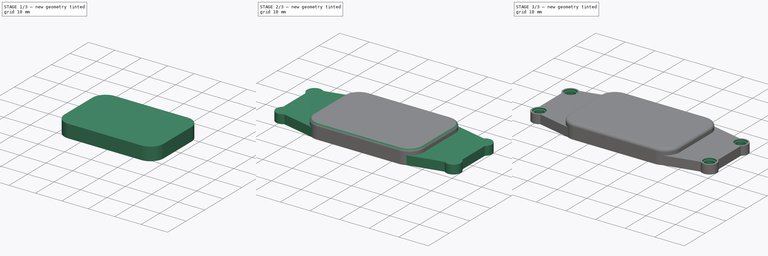
[diagram: build sequence overview — one tinted view per stage of 3, left to right]
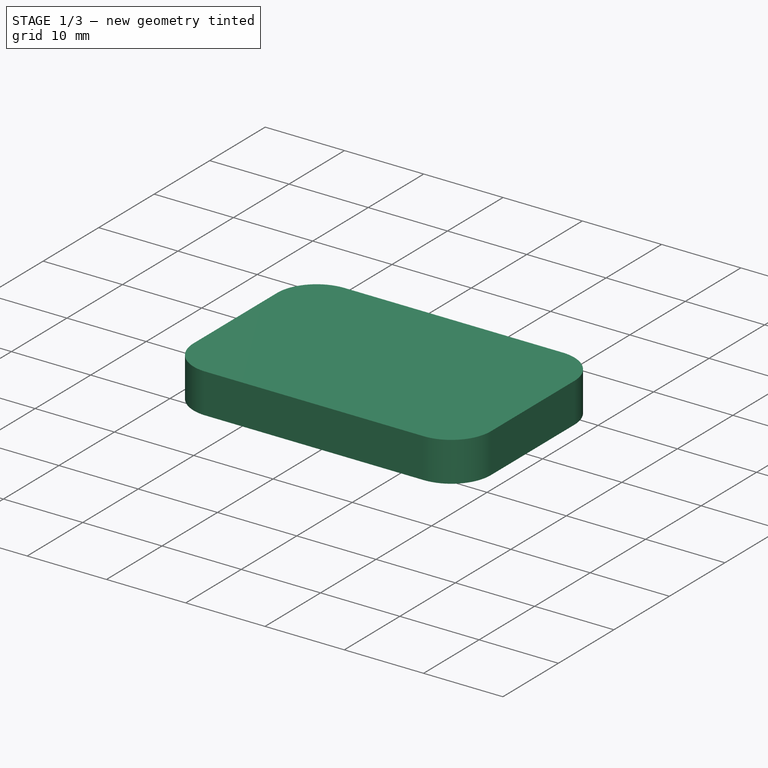
[diagram: stage 1 of 3 — iso view after this stage's code; geometry added in this stage tinted green]
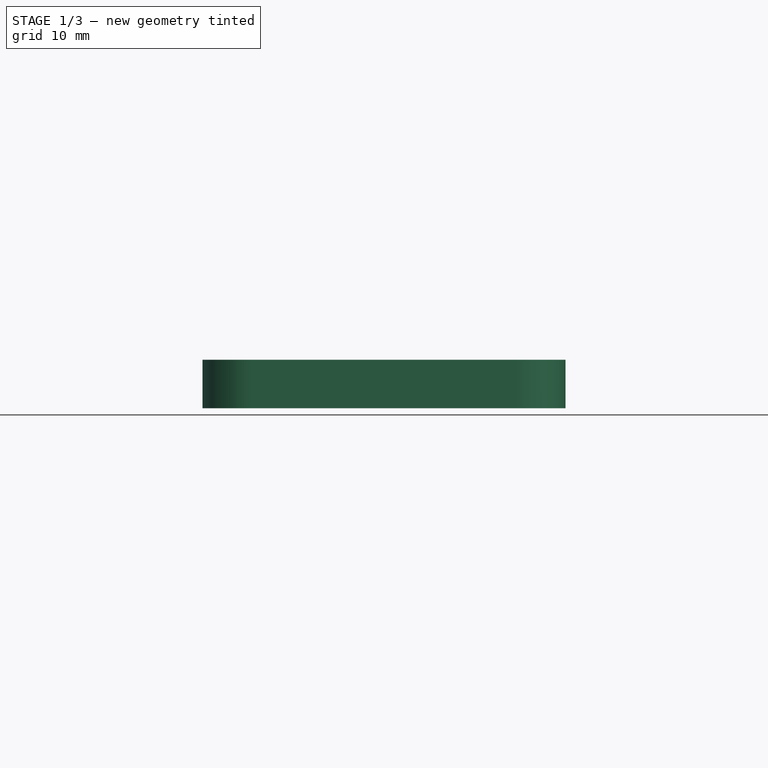
[diagram: stage 1 of 3 — front view after this stage's code; geometry added in this stage tinted green]
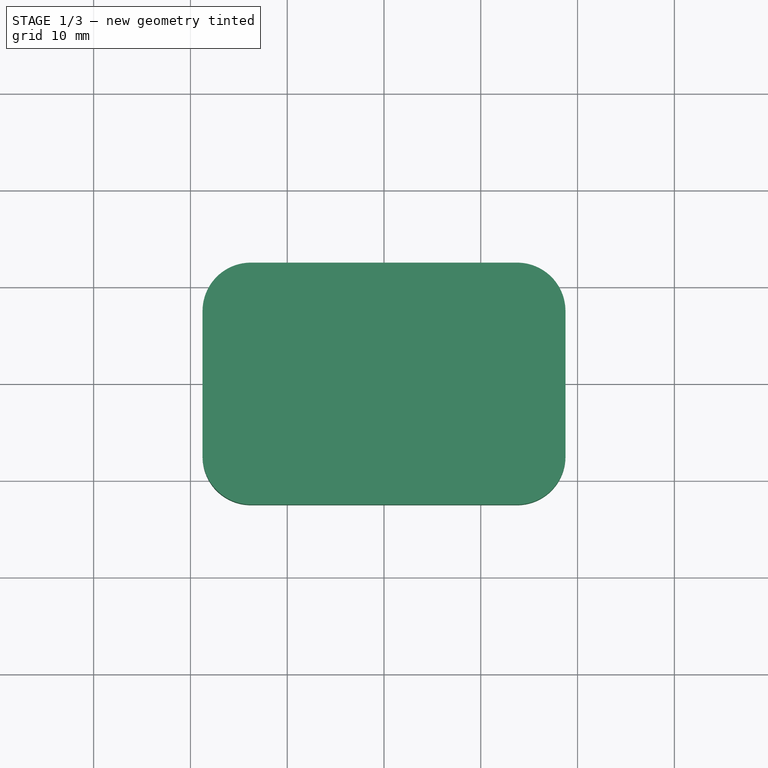
[diagram: stage 1 of 3 — top view after this stage's code; geometry added in this stage tinted green]
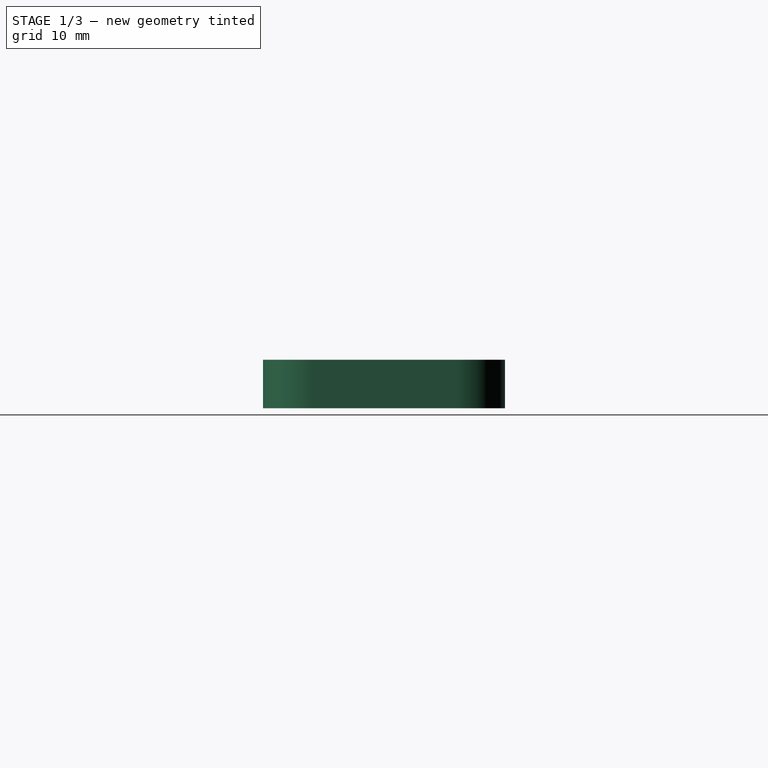
[diagram: stage 1 of 3 — right view after this stage's code; geometry added in this stage tinted green]
FCSTD DOCUMENT  (FreeCAD 0.20R29603 (Git))
Label: Sensor Holder Cap
License: All rights reserved
LicenseURL: http://en.wikipedia.org/wiki/All_rights_reserved
objects: Sketcher::SketchObject×6, PartDesign::Pad×3, PartDesign::Fillet×2, PartDesign::Pocket×2, PartDesign::Body×1
note: 21 computed .brp shape members not serialized (recipe doc carries the construction recipe); baked Part::Feature solids carry a one-line shape summary decoded from their .brp

FEATURE [Sketcher::SketchObject] Sketch
  FullyConstrained = true
  MapMode = 5
  Support = -> [XY_Plane]
  sketch-geometry (4):
    g0: LineSegment StartX=-18.75 StartY=12.5 StartZ=0 EndX=18.75 EndY=12.5 EndZ=0
    g1: LineSegment StartX=18.75 StartY=-12.5 StartZ=0 EndX=18.75 EndY=12.5 EndZ=0
    g2: LineSegment StartX=18.75 StartY=-12.5 StartZ=0 EndX=-18.75 EndY=-12.5 EndZ=0
    g3: LineSegment StartX=-18.75 StartY=12.5 StartZ=0 EndX=-18.75 EndY=-12.5 EndZ=0
  constraints (12):
    c: Coincident(g3,g0)
    c: Coincident(g0,g1)
    c: Coincident(g2,g1)
    c: Coincident(g3,g2)
    c: Horizontal(g0)
    c: Horizontal(g2)
    c: Vertical(g1)
    c: Vertical(g3)
    c: DistanceX(g0,g0) = 37.5
    c: DistanceY(g3,g3) = 25
    c: DistanceY(g-1,g0) = 12.5
    c: DistanceX(g0,g-1) = 18.75
FEATURE [PartDesign::Pad] Pad
  Direction = (0,0,1)
  Length = 5
  Length2 = 10
  Profile = -> Sketch
  ReferenceAxis = -> Sketch [N_Axis]
  Type = 0
FEATURE [PartDesign::Fillet] Fillet
  Base = -> Pad [Edge5,Edge2,Edge8,Edge1]
  BaseFeature = -> Pad
  Radius = 5
  SupportTransform = false
  UseAllEdges = false
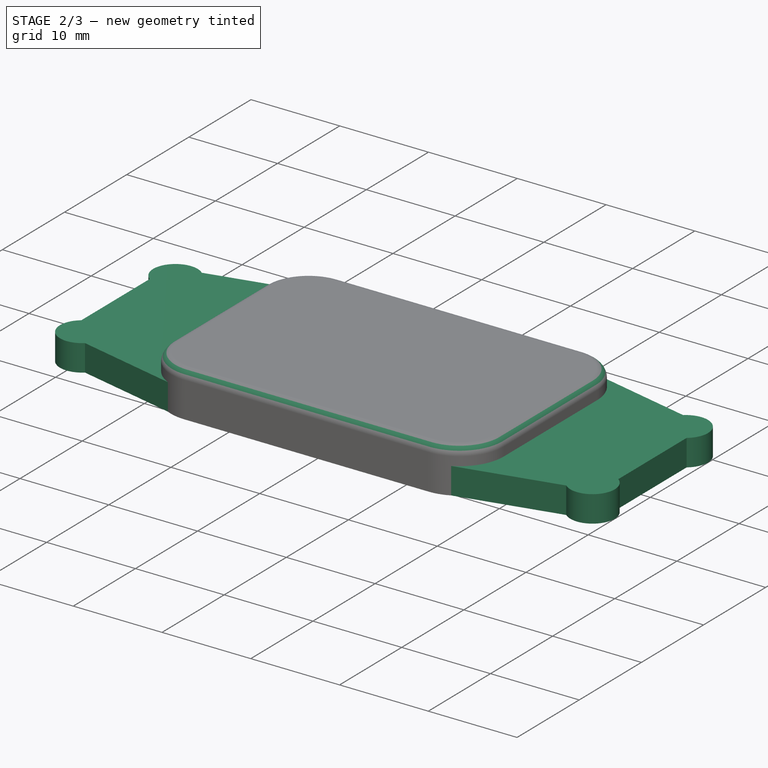
[diagram: stage 2 of 3 — iso view after this stage's code; geometry added in this stage tinted green]
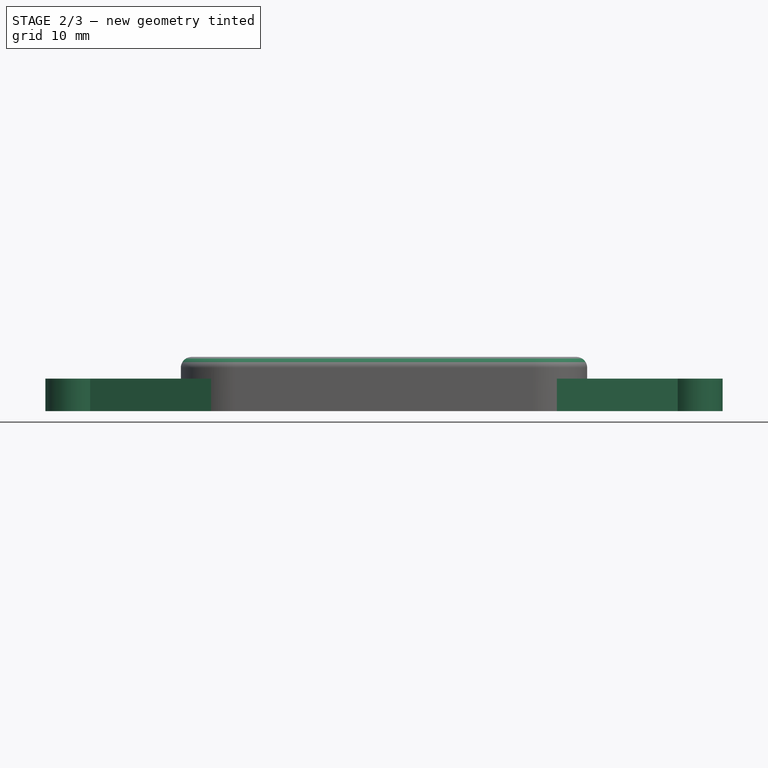
[diagram: stage 2 of 3 — front view after this stage's code; geometry added in this stage tinted green]
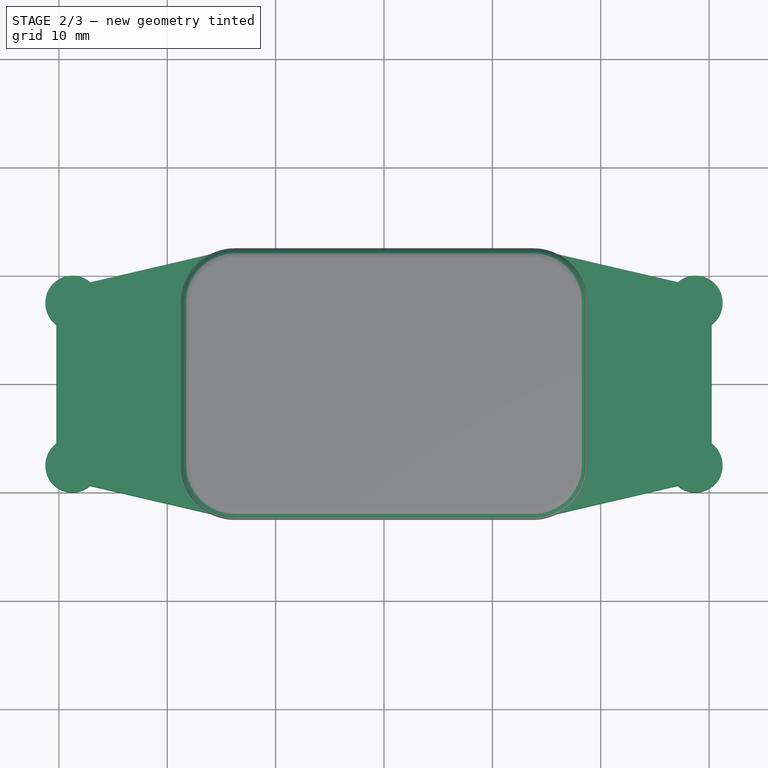
[diagram: stage 2 of 3 — top view after this stage's code; geometry added in this stage tinted green]
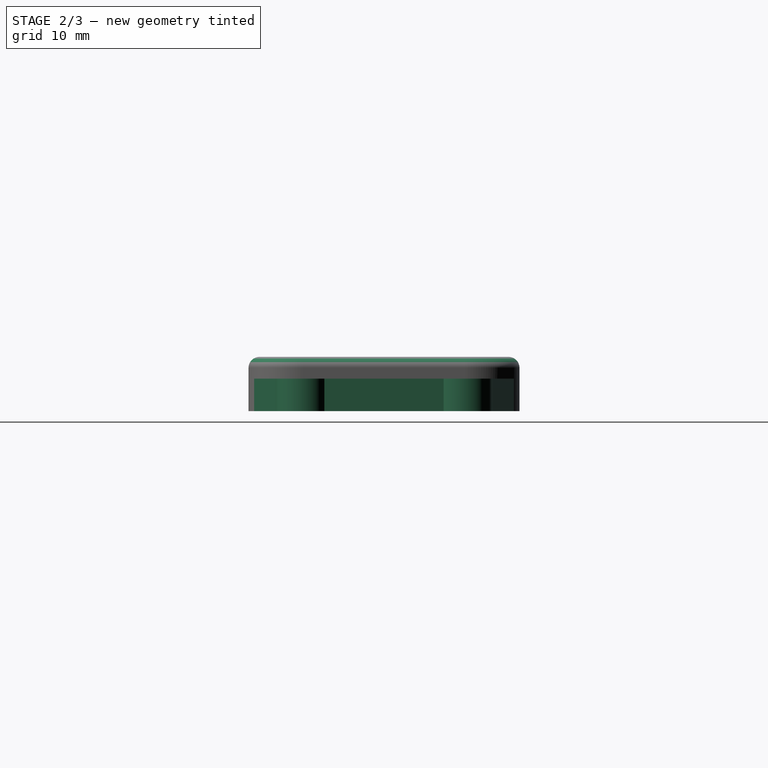
[diagram: stage 2 of 3 — right view after this stage's code; geometry added in this stage tinted green]
FEATURE [PartDesign::Fillet] Fillet001
  Base = -> Fillet [Edge20,Edge18,Edge16,Edge13,Edge4,Edge15,Edge17,Edge19]
  BaseFeature = -> Fillet
  Radius = 1
  SupportTransform = false
  UseAllEdges = false
FEATURE [Sketcher::SketchObject] Sketch001
  ExternalGeometry = -> [Fillet001]
  FullyConstrained = false
  MapMode = 5
  Placement = pos=(0,0,0) rot=(1,0,0;3.14159rad)
  Support = -> [Fillet001]
  sketch-geometry (12):
    g0: LineSegment StartX=-13.75 StartY=12.5 StartZ=0 EndX=-28.7992 EndY=8.99919 EndZ=0
    g1: LineSegment StartX=-30.2496 StartY=7.46631 StartZ=0 EndX=-30.2496 EndY=-7.51106 EndZ=0
    g2: LineSegment StartX=-28.7326 StartY=-8.9999 StartZ=0 EndX=-13.75 EndY=-12.5 EndZ=0
    g3: LineSegment StartX=13.75 StartY=12.5 StartZ=0 EndX=28.7831 EndY=8.99964 EndZ=0
    g4: LineSegment StartX=30.2463 StartY=7.39464 StartZ=0 EndX=30.2463 EndY=-7.60536 EndZ=0
    g5: LineSegment StartX=28.8263 StartY=-8.99806 StartZ=0 EndX=13.75 EndY=-12.5 EndZ=0
    g6: LineSegment StartX=-13.75 StartY=12.5 StartZ=0 EndX=13.75 EndY=12.5 EndZ=0
    g7: LineSegment StartX=13.75 StartY=-12.5 StartZ=0 EndX=-13.75 EndY=-12.5 EndZ=0
    g8: ArcOfCircle CenterX=-28.75 CenterY=7.5 CenterZ=0 NormalX=0 NormalY=0 NormalZ=1 AngleXU=0 Radius=1.5 StartAngle=1.60363 EndAngle=3.16406
    g9: ArcOfCircle CenterX=-28.7497 CenterY=-7.5 CenterZ=0 NormalX=0 NormalY=0 NormalZ=1 AngleXU=0 Radius=1.5 StartAngle=3.14896 EndAngle=4.72373
    g10: ArcOfCircle CenterX=28.75 CenterY=-7.5 CenterZ=0 NormalX=0 NormalY=0 NormalZ=1 AngleXU=0 Radius=1.5 StartAngle=4.7633 EndAngle=6.21289
    g11: ArcOfCircle CenterX=28.75 CenterY=7.5 CenterZ=0 NormalX=0 NormalY=0 NormalZ=1 AngleXU=0 Radius=1.5 StartAngle=6.21289 EndAngle=7.83192
  constraints (21):
    c: Vertical(g1)
    c: Vertical(g4)
    c: Coincident(g0,g-4)
    c: Coincident(g5,g-3)
    c: Coincident(g3,g-4)
    c: Coincident(g6,g0)
    c: Coincident(g6,g3)
    c: Coincident(g7,g5)
    c: Coincident(g7,g2)
    c: Coincident(g9,g2)
    c: Coincident(g9,g1)
    c: Coincident(g10,g5)
    c: Coincident(g10,g4)
    c: Coincident(g11,g3)
    c: Coincident(g11,g4)
    c: Coincident(g1,g8)
    c: Coincident(g0,g8)
    c: Diameter(g9) = 3
    c: Diameter(g8) = 3
    c: Diameter(g11) = 3
    c: Diameter(g10) = 3
FEATURE [PartDesign::Pad] Pad001
  AlongSketchNormal = false
  BaseFeature = -> Fillet001
  Direction = (0,0,-1)
  Length = 3
  Length2 = 10
  Profile = -> Sketch001
  ReferenceAxis = -> Sketch001 [N_Axis]
  Reversed = true
  Type = 0
FEATURE [Sketcher::SketchObject] Sketch002
  ExternalGeometry = -> [Pad001]
  FullyConstrained = true
  MapMode = 5
  Support = -> [XY_Plane]
  sketch-geometry (8):
    g0: Circle CenterX=28.75 CenterY=-7.5 CenterZ=0 NormalX=0 NormalY=0 NormalZ=1 AngleXU=0 Radius=1.5
    g1: Circle CenterX=28.75 CenterY=7.5 CenterZ=0 NormalX=0 NormalY=0 NormalZ=1 AngleXU=0 Radius=1.5
    g2: Circle CenterX=-28.7497 CenterY=7.5 CenterZ=0 NormalX=0 NormalY=0 NormalZ=1 AngleXU=0 Radius=1.5
    g3: Circle CenterX=-28.75 CenterY=-7.5 CenterZ=0 NormalX=0 NormalY=0 NormalZ=1 AngleXU=0 Radius=1.5
    g4: Circle CenterX=28.75 CenterY=7.5 CenterZ=0 NormalX=0 NormalY=0 NormalZ=1 AngleXU=0 Radius=2.5
    g5: Circle CenterX=28.75 CenterY=-7.5 CenterZ=0 NormalX=0 NormalY=0 NormalZ=1 AngleXU=0 Radius=2.5
    g6: Circle CenterX=-28.75 CenterY=-7.5 CenterZ=0 NormalX=0 NormalY=0 NormalZ=1 AngleXU=0 Radius=2.5
    g7: Circle CenterX=-28.7497 CenterY=7.5 CenterZ=0 NormalX=0 NormalY=0 NormalZ=1 AngleXU=0 Radius=2.5
  constraints (16):
    c: Coincident(g3,g-8)
    c: Coincident(g2,g-6)
    c: Coincident(g1,g-12)
    c: Coincident(g0,g-11)
    c: Diameter(g3) = 3
    c: Diameter(g2) = 3
    c: Diameter(g1) = 3
    c: Diameter(g0) = 3
    c: Coincident(g6,g-8)
    c: Coincident(g7,g-6)
    c: Coincident(g4,g-12)
    c: Coincident(g5,g-11)
    c: Diameter(g6) = 5
    c: Diameter(g7) = 5
    c: Diameter(g4) = 5
    c: Diameter(g5) = 5
FEATURE [PartDesign::Pad] Pad002
  BaseFeature = -> Pad001
  Direction = (0,0,1)
  Length = 3
  Length2 = 10
  Profile = -> Sketch002
  ReferenceAxis = -> Sketch002 [N_Axis]
  Type = 0
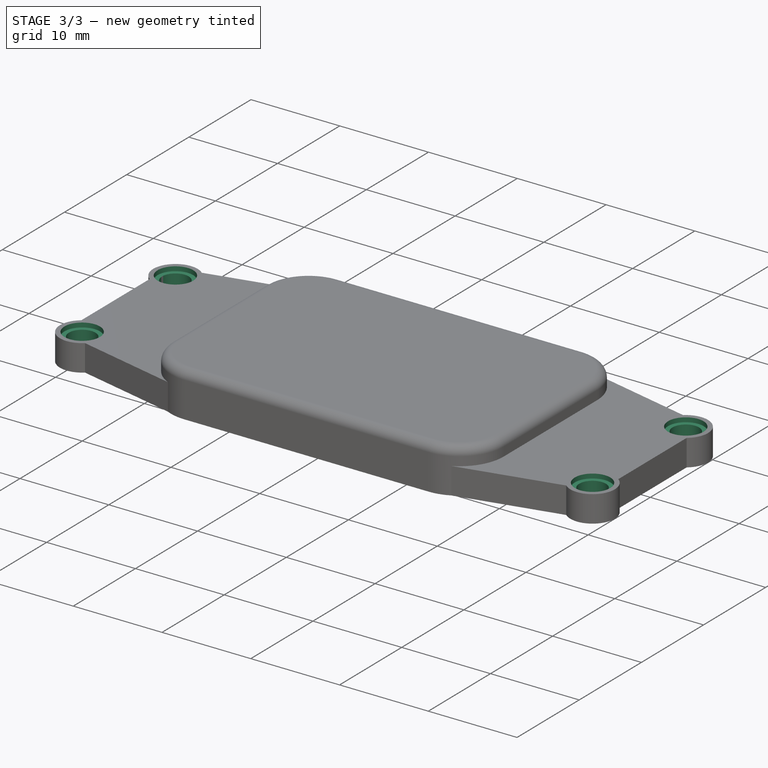
[diagram: stage 3 of 3 — iso view after this stage's code; geometry added in this stage tinted green]
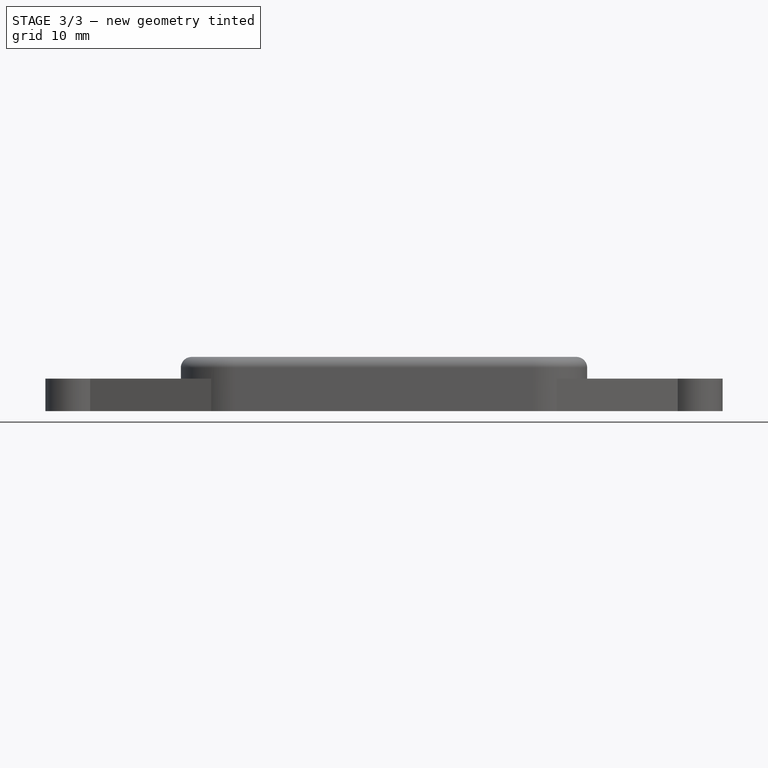
[diagram: stage 3 of 3 — front view after this stage's code; geometry added in this stage tinted green]
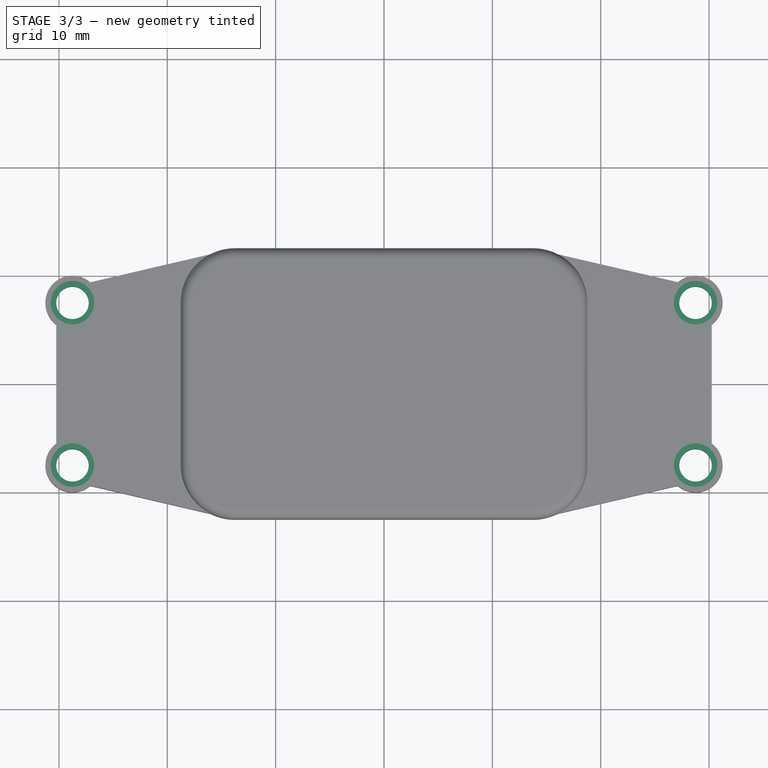
[diagram: stage 3 of 3 — top view after this stage's code; geometry added in this stage tinted green]
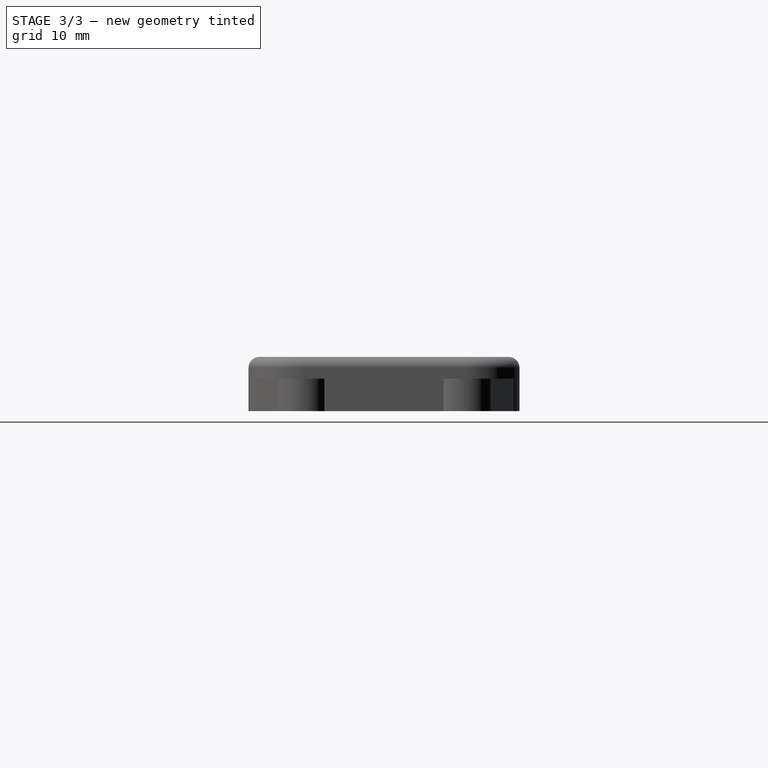
[diagram: stage 3 of 3 — right view after this stage's code; geometry added in this stage tinted green]
FEATURE [PartDesign::Pocket] Pocket
  BaseFeature = -> Pad002
  Direction = (0,0,1)
  Length = 3
  Length2 = 5
  Profile = -> Pad002 [Face54,Face56,Face43,Face47]
  Type = 0
FEATURE [Sketcher::SketchObject] Sketch003
  FullyConstrained = true
  MapMode = 5
  Support = -> [XY_Plane]
FEATURE [Sketcher::SketchObject] Sketch004
  ExternalGeometry = -> [Pocket]
  FullyConstrained = true
  MapMode = 5
  Placement = pos=(0,0,3) rot=(0,0,1;0rad)
  Support = -> [Pocket]
  sketch-geometry (4):
    g0: Circle CenterX=-28.7497 CenterY=7.5 CenterZ=0 NormalX=0 NormalY=0 NormalZ=1 AngleXU=0 Radius=2
    g1: Circle CenterX=-28.75 CenterY=-7.5 CenterZ=0 NormalX=0 NormalY=0 NormalZ=1 AngleXU=0 Radius=2
    g2: Circle CenterX=28.75 CenterY=7.5 CenterZ=0 NormalX=0 NormalY=0 NormalZ=1 AngleXU=0 Radius=2
    g3: Circle CenterX=28.75 CenterY=-7.5 CenterZ=0 NormalX=0 NormalY=0 NormalZ=1 AngleXU=0 Radius=2
  constraints (8):
    c: Coincident(g0,g-3)
    c: Coincident(g1,g-4)
    c: Coincident(g2,g-5)
    c: Coincident(g3,g-6)
    c: Diameter(g0) = 4
    c: Diameter(g1) = 4
    c: Diameter(g2) = 4
    c: Diameter(g3) = 4
FEATURE [PartDesign::Pocket] Pocket001
  BaseFeature = -> Pocket
  Direction = (0,0,-1)
  Length = 0.5
  Length2 = 5
  Profile = -> Sketch004
  ReferenceAxis = -> Sketch004 [N_Axis]
  Type = 0
FEATURE [Sketcher::SketchObject] Sketch005
  FullyConstrained = true
  MapMode = 5
  Placement = pos=(0,0,3) rot=(0,0,1;0rad)
  Support = -> [Pocket001]
FEATURE [PartDesign::Body] Body
  Group = -> [Sketch,Pad,Fillet,Fillet001,Sketch001,Pad001,Sketch002,Pad002,Pocket,Sketch003,Sketch004,Pocket001,Sketch005]
  Origin = -> Origin
  Tip = -> Pocket001
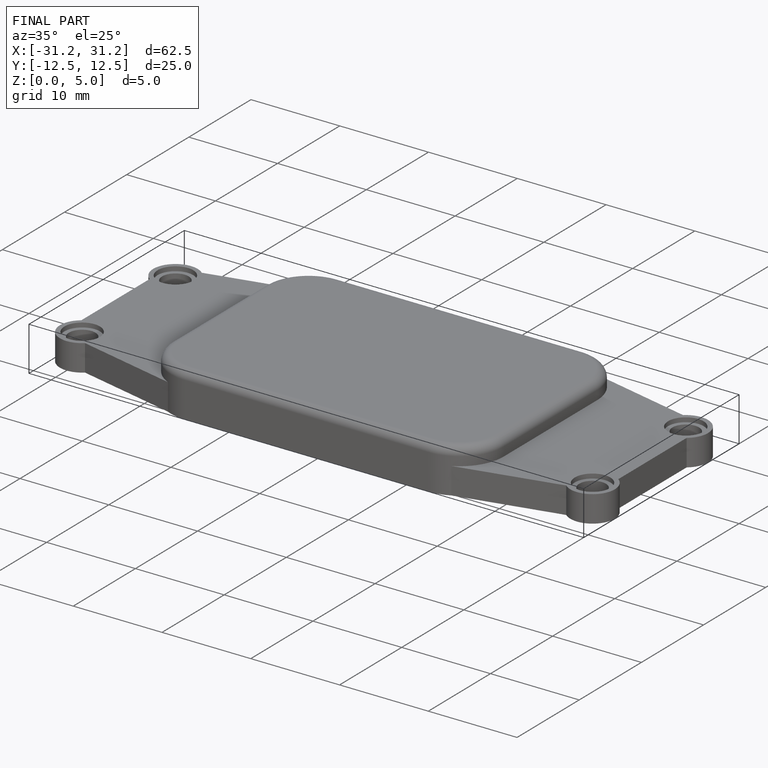
[diagram: finished part — iso view with bounding-box wireframe]
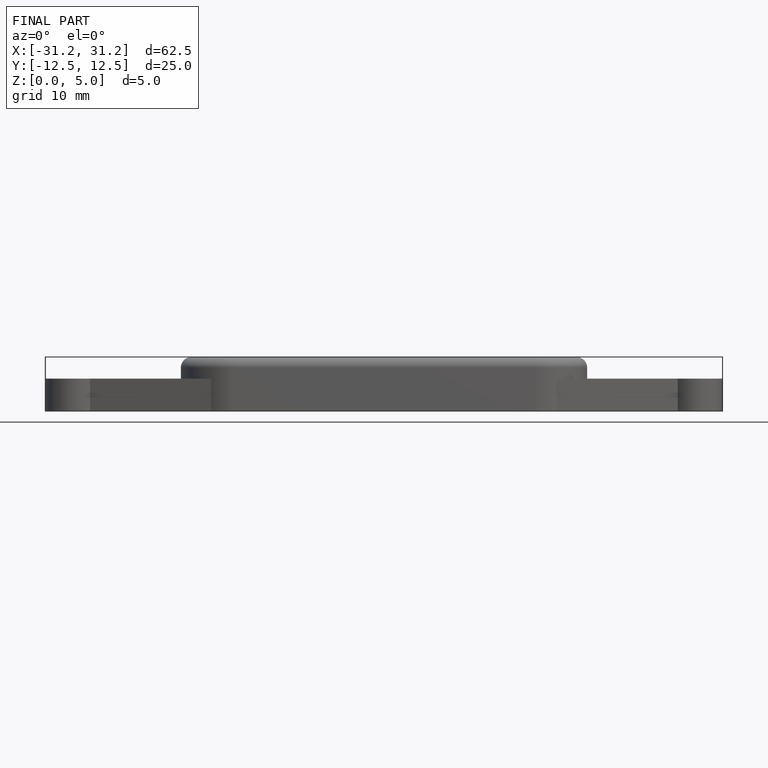
[diagram: finished part — front view with bounding-box wireframe]
